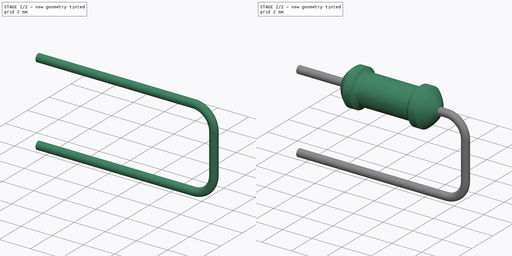
[diagram: build sequence overview — one tinted view per stage of 2, left to right]
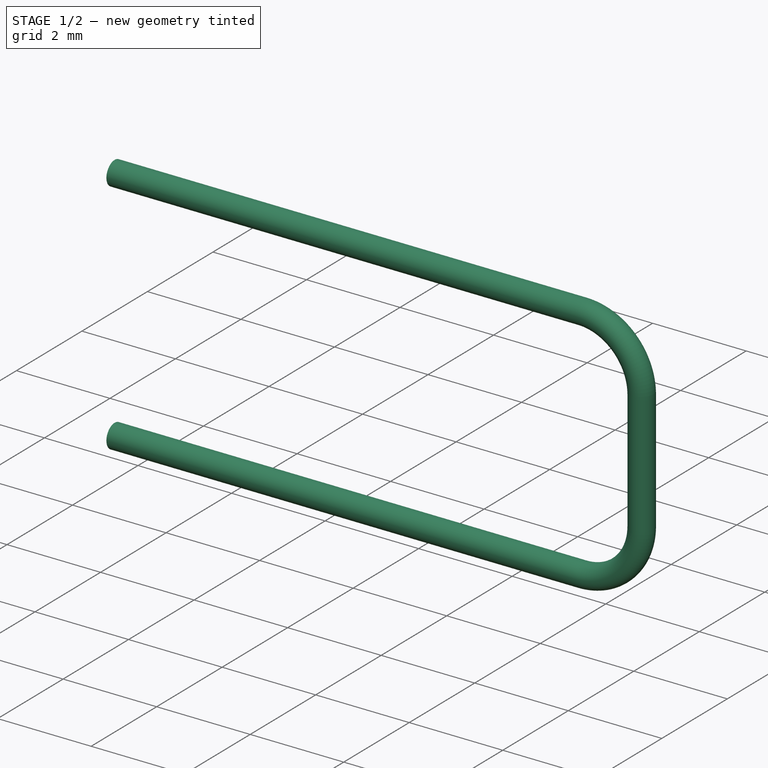
[diagram: stage 1 of 2 — iso view after this stage's code; geometry added in this stage tinted green]
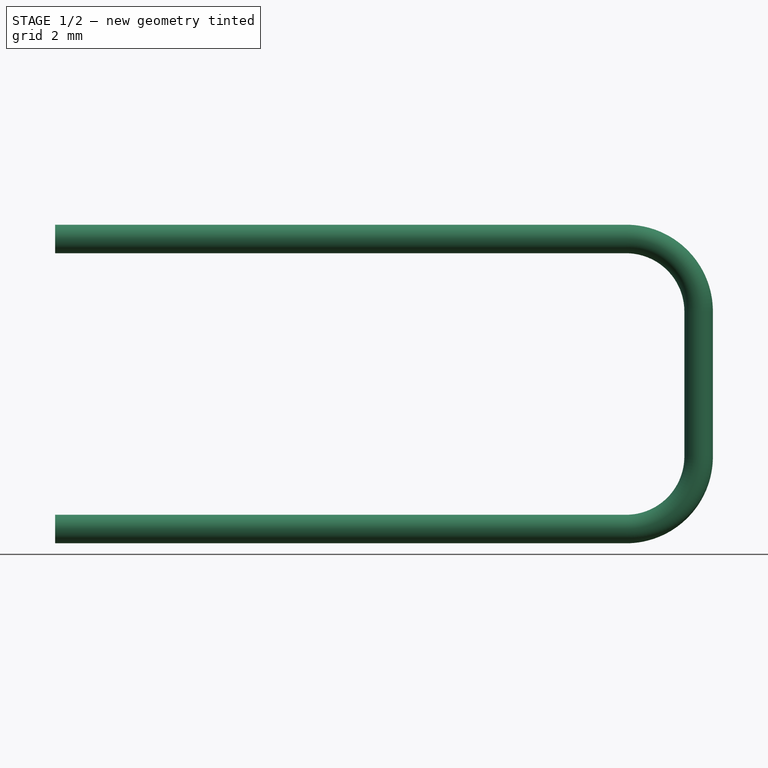
[diagram: stage 1 of 2 — front view after this stage's code; geometry added in this stage tinted green]
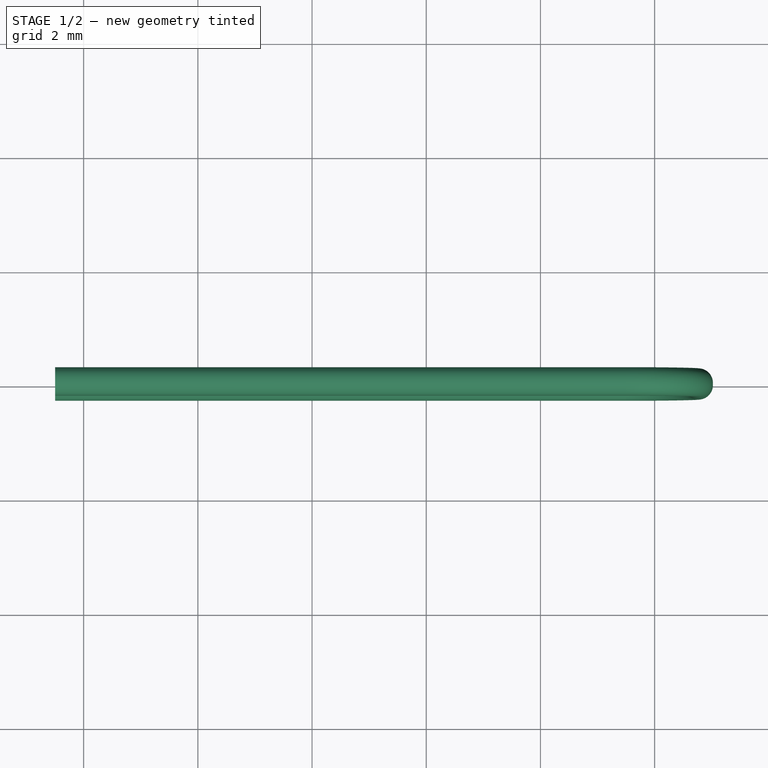
[diagram: stage 1 of 2 — top view after this stage's code; geometry added in this stage tinted green]
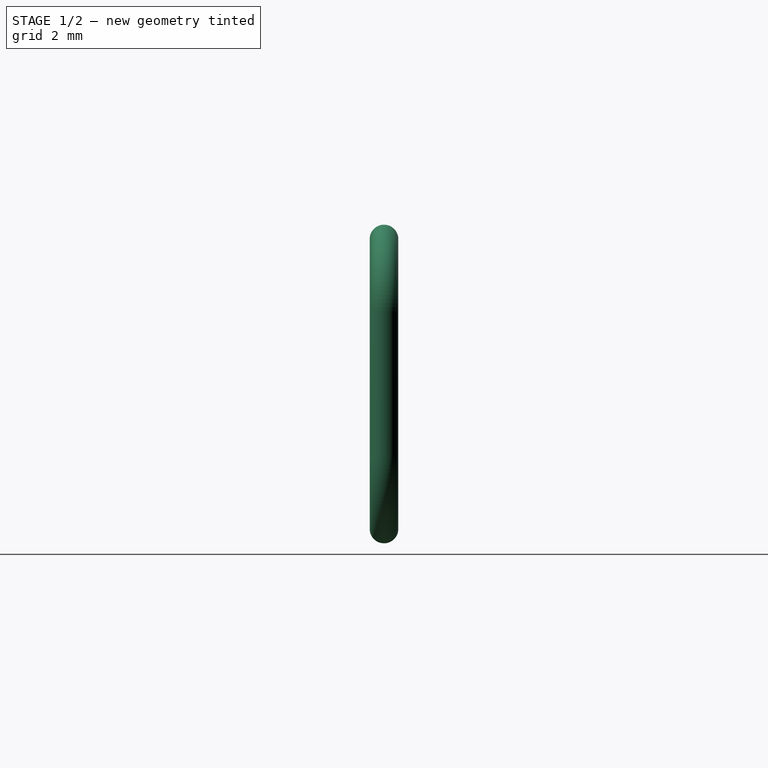
[diagram: stage 1 of 2 — right view after this stage's code; geometry added in this stage tinted green]
FCSTD DOCUMENT  (FreeCAD 0.16R6703 (Git))
Label: Resistor_Vertical_RM5mm
License: All rights reserved
LicenseURL: http://en.wikipedia.org/wiki/All_rights_reserved
objects: Sketcher::SketchObject×3, PartDesign::Revolution×1, Part::Sweep×1
note: 6 computed .brp shape members not serialized (recipe doc carries the construction recipe); baked Part::Feature solids carry a one-line shape summary decoded from their .brp

FEATURE [Sketcher::SketchObject] Sketch
  Placement = pos=(-2.5,0,0) rot=(0.57735,0.57735,0.57735;2.0944rad)
  sketch-geometry (1):
    g0: Circle CenterX=0 CenterY=0 CenterZ=0 NormalX=0 NormalY=0 NormalZ=1 Radius=0.25
  constraints (2):
    c: Coincident(g0,g-1)
    c: Radius(g0) = 0.25
FEATURE [Part::Sweep] Sweep
  Frenet = true
  Sections = -> [Sketch]
  Solid = true
  Spine = -> Sketch001 [Edge5,Edge4,Edge3,Edge2,Edge1]
  Transition = 1
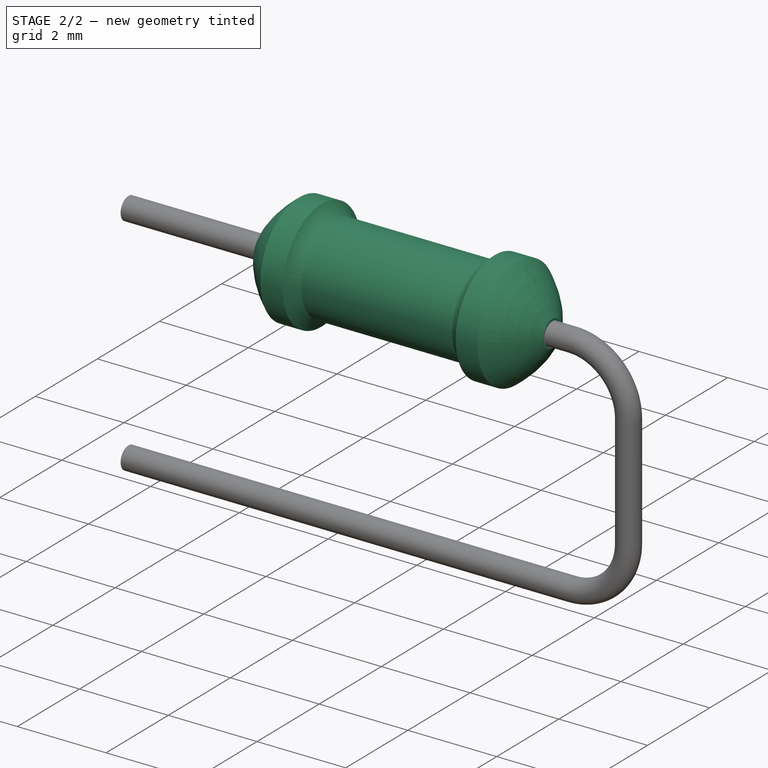
[diagram: stage 2 of 2 — iso view after this stage's code; geometry added in this stage tinted green]
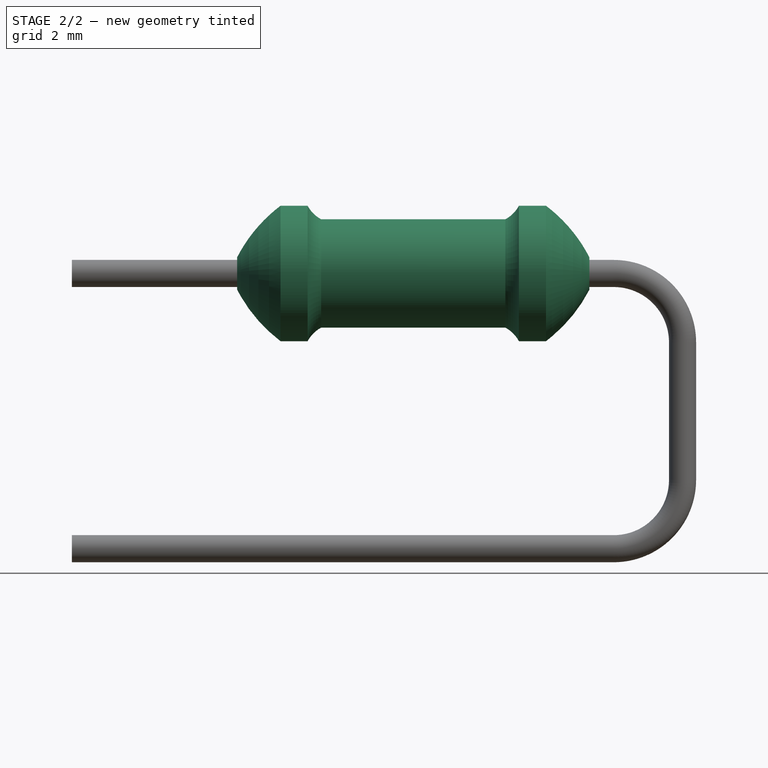
[diagram: stage 2 of 2 — front view after this stage's code; geometry added in this stage tinted green]
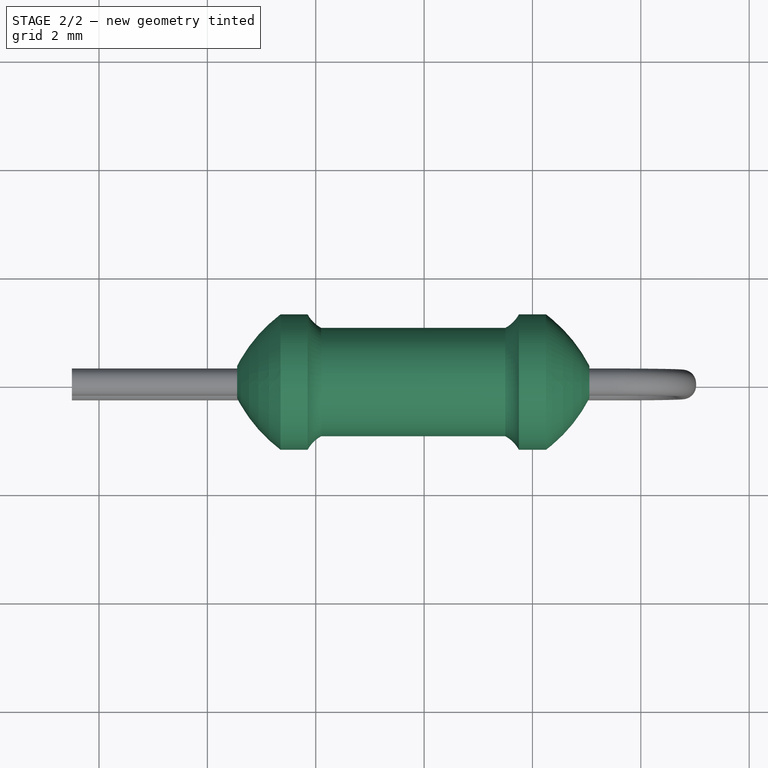
[diagram: stage 2 of 2 — top view after this stage's code; geometry added in this stage tinted green]
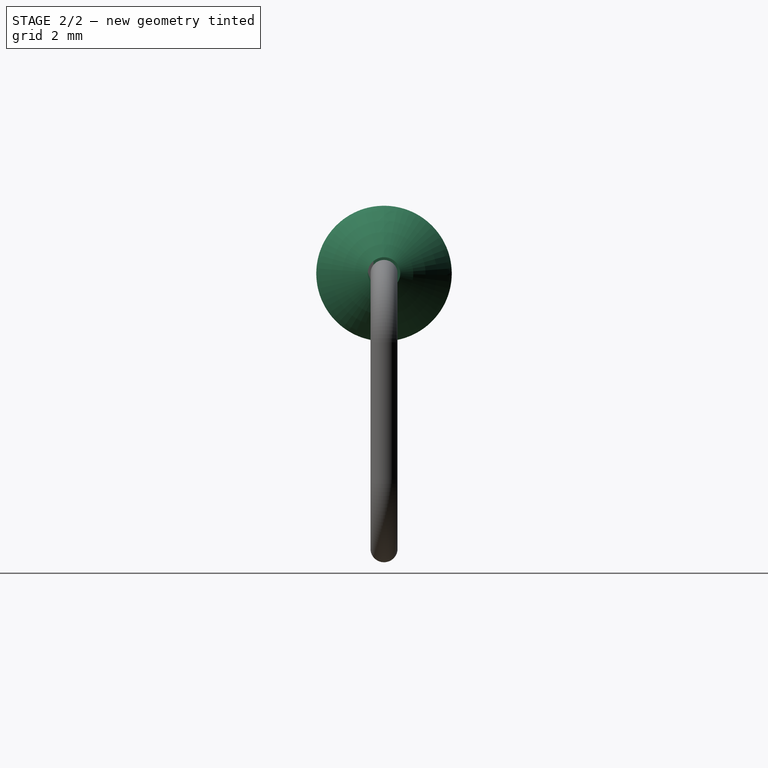
[diagram: stage 2 of 2 — right view after this stage's code; geometry added in this stage tinted green]
FEATURE [Sketcher::SketchObject] Sketch001
  Placement = pos=(0,0,0) rot=(1,0,0;1.5708rad)
  sketch-geometry (8):
    g0: LineSegment StartX=-2.5 StartY=5.08 StartZ=0 EndX=7.5 EndY=5.08 EndZ=0
    g1: LineSegment StartX=7.5 StartY=0 StartZ=0 EndX=-2.5 EndY=0 EndZ=0
    g2: LineSegment [constr] StartX=7.5 StartY=3.81 StartZ=0 EndX=7.5 EndY=5.08 EndZ=0
    g3: LineSegment [constr] StartX=7.5 StartY=3.81 StartZ=0 EndX=7.5 EndY=1.27 EndZ=0
    g4: LineSegment [constr] StartX=7.5 StartY=1.27 StartZ=0 EndX=7.5 EndY=0 EndZ=0
    g5: ArcOfCircle CenterX=7.5 CenterY=3.81 CenterZ=0 NormalX=0 NormalY=0 NormalZ=1 Radius=1.27 StartAngle=0 EndAngle=1.5708
    g6: ArcOfCircle CenterX=7.5 CenterY=1.27 CenterZ=0 NormalX=0 NormalY=0 NormalZ=1 Radius=1.27 StartAngle=4.71239 EndAngle=6.28319
    g7: LineSegment StartX=8.77 StartY=1.27 StartZ=0 EndX=8.77 EndY=3.81 EndZ=0
  constraints (24):
    c: Horizontal(g0)
    c: DistanceY(g-1,g0) = 5.08
    c: Horizontal(g1)
    c: DistanceX(g0,g0) = 10
    c: Equal(g1,g0)
    c: Coincident(g2,g0)
    c: Vertical(g3)
    c: Parallel(g2,g3)
    c: DistanceX(g1,g-1) = 2.5
    c: DistanceY(g-1,g1) = 0
    c: Coincident(g4,g3)
    c: Coincident(g4,g1)
    c: Vertical(g4)
    c: DistanceY(g4,g4) = 1.27
    c: DistanceY(g2,g2) = 1.27
    c: Coincident(g5,g2)
    c: Coincident(g5,g0)
    c: Coincident(g6,g3)
    c: Coincident(g6,g1)
    c: Coincident(g7,g6)
    c: Coincident(g7,g5)
    c: Vertical(g7)
    c: DistanceY(g5,g2) = 0
    c: DistanceY(g3,g6) = 0
FEATURE [Sketcher::SketchObject] Sketch002  label="Axis0"
  Placement = pos=(0,0,0) rot=(1,0,0;1.5708rad)
  sketch-geometry (16):
    g0: LineSegment [constr] StartX=0.55 StartY=5.08 StartZ=0 EndX=7.05 EndY=5.08 EndZ=0
    g1: LineSegment [constr] StartX=0.55 StartY=5.08 StartZ=0 EndX=0.55 EndY=0 EndZ=0
    g2: LineSegment [constr] StartX=0.55 StartY=0 StartZ=0 EndX=0 EndY=0 EndZ=0
    g3: LineSegment [constr] StartX=1.35 StartY=6.33 StartZ=0 EndX=1.35 EndY=5.08 EndZ=0
    g4: LineSegment StartX=1.35 StartY=6.33 StartZ=0 EndX=1.85 EndY=6.33 EndZ=0
    g5: ArcOfCircle CenterX=2.4 CenterY=6.63 CenterZ=0 NormalX=0 NormalY=0 NormalZ=1 Radius=0.626498 StartAngle=3.64094 EndAngle=4.21304
    g6: LineSegment StartX=2.1 StartY=6.08 StartZ=0 EndX=5.5 EndY=6.08 EndZ=0
    g7: ArcOfCircle CenterX=5.2 CenterY=6.63 CenterZ=0 NormalX=0 NormalY=0 NormalZ=1 Radius=0.626498 StartAngle=5.21174 EndAngle=5.78384
    g8: LineSegment [constr] StartX=2.4 StartY=6.63 StartZ=0 EndX=5.2 EndY=6.63 EndZ=0
    g9: LineSegment StartX=5.75 StartY=6.33 StartZ=0 EndX=6.25 EndY=6.33 EndZ=0
    g10: LineSegment [constr] StartX=3.0302 StartY=4.10325 StartZ=0 EndX=4.5698 EndY=4.10325 EndZ=0
    g11: LineSegment StartX=0.55 StartY=5.08 StartZ=0 EndX=7.05 EndY=5.08 EndZ=0
    g12: LineSegment StartX=0.55 StartY=5.08 StartZ=0 EndX=0.55 EndY=5.38 EndZ=0
    g13: ArcOfCircle CenterX=3.0302 CenterY=4.10325 CenterZ=0 NormalX=0 NormalY=0 NormalZ=1 Radius=2.78953 StartAngle=2.21721 EndAngle=2.66619
    g14: LineSegment StartX=7.05 StartY=5.08 StartZ=0 EndX=7.05 EndY=5.38 EndZ=0
    g15: ArcOfCircle CenterX=4.5698 CenterY=4.10325 CenterZ=0 NormalX=0 NormalY=0 NormalZ=1 Radius=2.78953 StartAngle=0.475399 EndAngle=0.924387
  constraints (47):
    c: Horizontal(g0)
    c: DistanceX(g0,g0) = 6.5
    c: Coincident(g1,g0)
    c: Vertical(g1)
    c: Coincident(g2,g1)
    c: Coincident(g2,g-1)
    c: Horizontal(g2)
    c: DistanceX(g2,g2) = 0.55
    c: DistanceY(g1,g1) = 5.08
    c: DistanceY(g3,g3) = 1.25
    c: PointOnObject(g3,g0)
    c: Perpendicular(g0,g3)
    c: Coincident(g4,g3)
    c: Horizontal(g4)
    c: DistanceX(g4,g4) = 0.5
    c: Coincident(g5,g4)
    c: Horizontal(g6)
    c: Coincident(g5,g6)
    c: DistanceX(g4,g5) = 0.25
    c: DistanceX(g0,g3) = 0.8
    c: DistanceY(g5,g4) = 0.25
    c: Coincident(g7,g6)
    c: Coincident(g8,g5)
    c: Horizontal(g8)
    c: Coincident(g7,g8)
    c: Coincident(g9,g7)
    c: Horizontal(g9)
    c: Equal(g9,g4)
    c: DistanceX(g9,g0) = 0.8
    c: DistanceY(g0,g7) = 1.25
    c: DistanceX(g6,g7) = 0.25
    c: DistanceX(g7,g6) = 0.3
    c: Parallel(g0,g10)
    c: Coincident(g11,g0)
    c: Vertical(g12)
    c: DistanceY(g12,g12) = 0.3
    c: Coincident(g13,g12)
    c: Coincident(g13,g3)
    c: Coincident(g13,g10)
    c: Coincident(g12,g0)
    c: Coincident(g14,g0)
    c: Vertical(g14)
    c: Equal(g14,g12)
    c: Coincident(g15,g14)
    c: Coincident(g15,g10)
    c: Coincident(g9,g15)
    c: Coincident(g11,g0)
FEATURE [PartDesign::Revolution] Revolution
  Angle = 360
  Axis = (6.5,0,0)
  Base = (0.55,0,5.08)
  Placement = pos=(0,0,0) rot=(1,0,0;1.5708rad)
  ReferenceAxis = -> Sketch002 [Axis0]
  Sketch = -> Sketch002
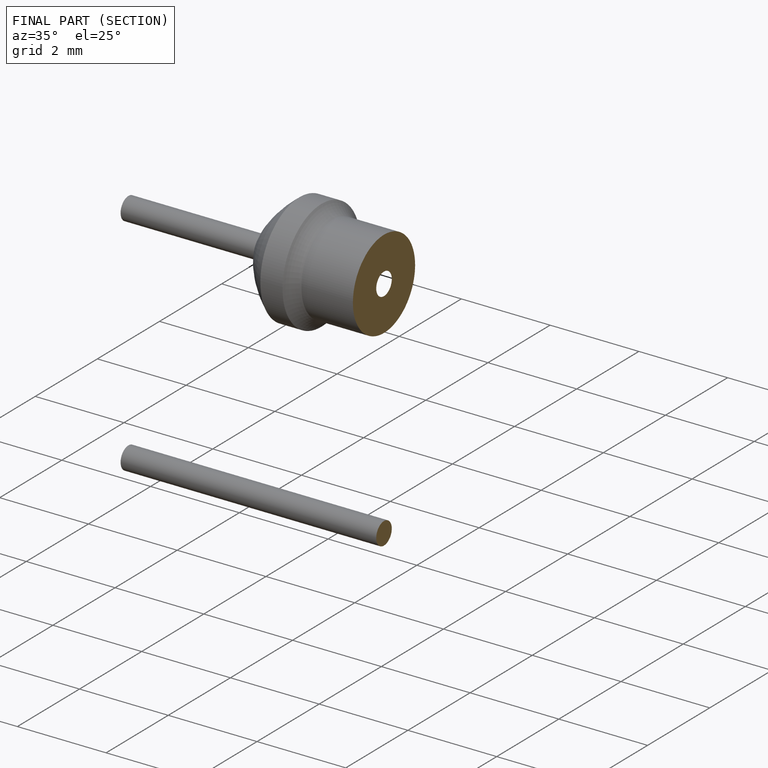
[diagram: finished part — half-section view (interior)]
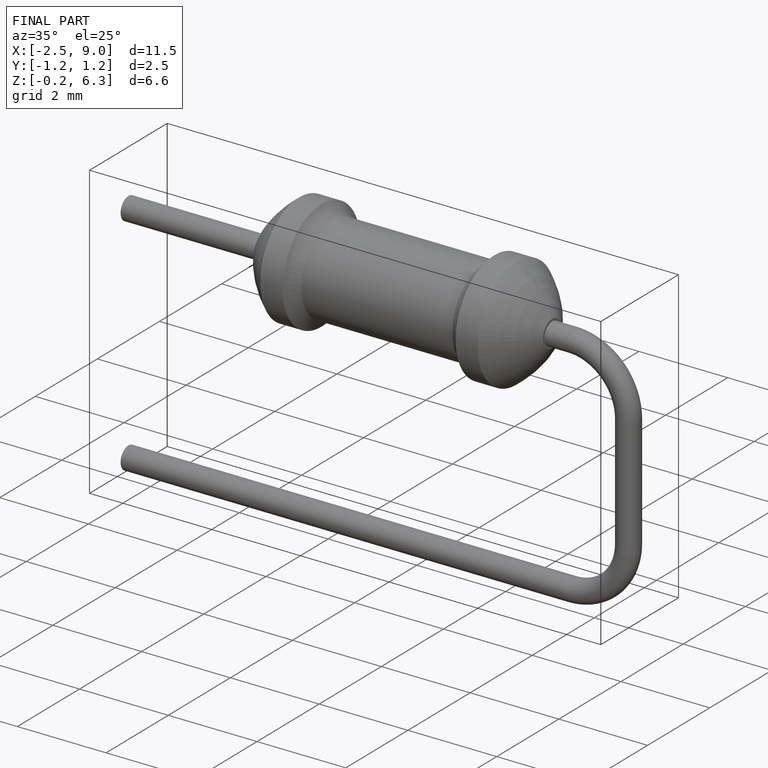
[diagram: finished part — iso view with bounding-box wireframe]
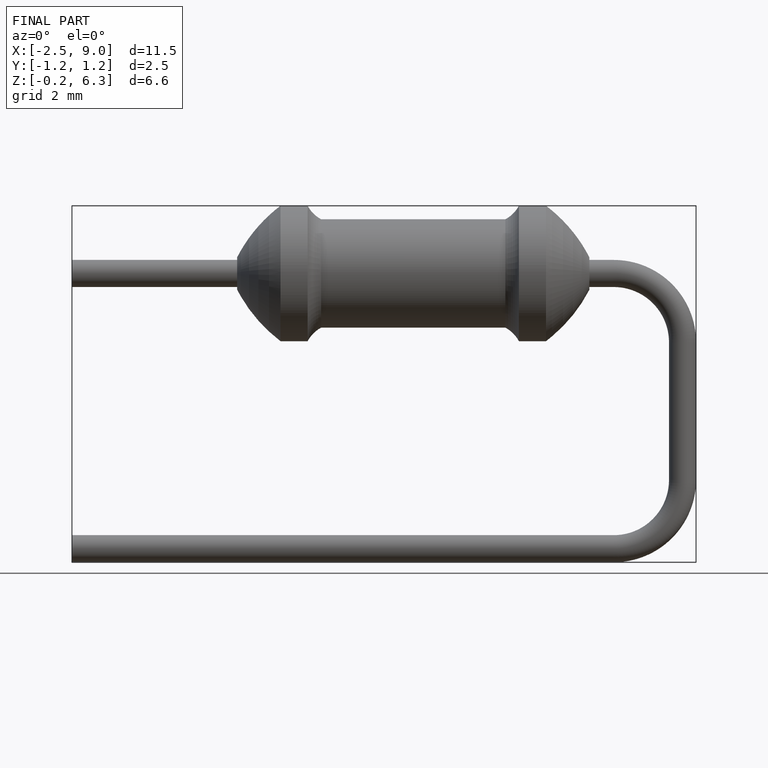
[diagram: finished part — front view with bounding-box wireframe]
